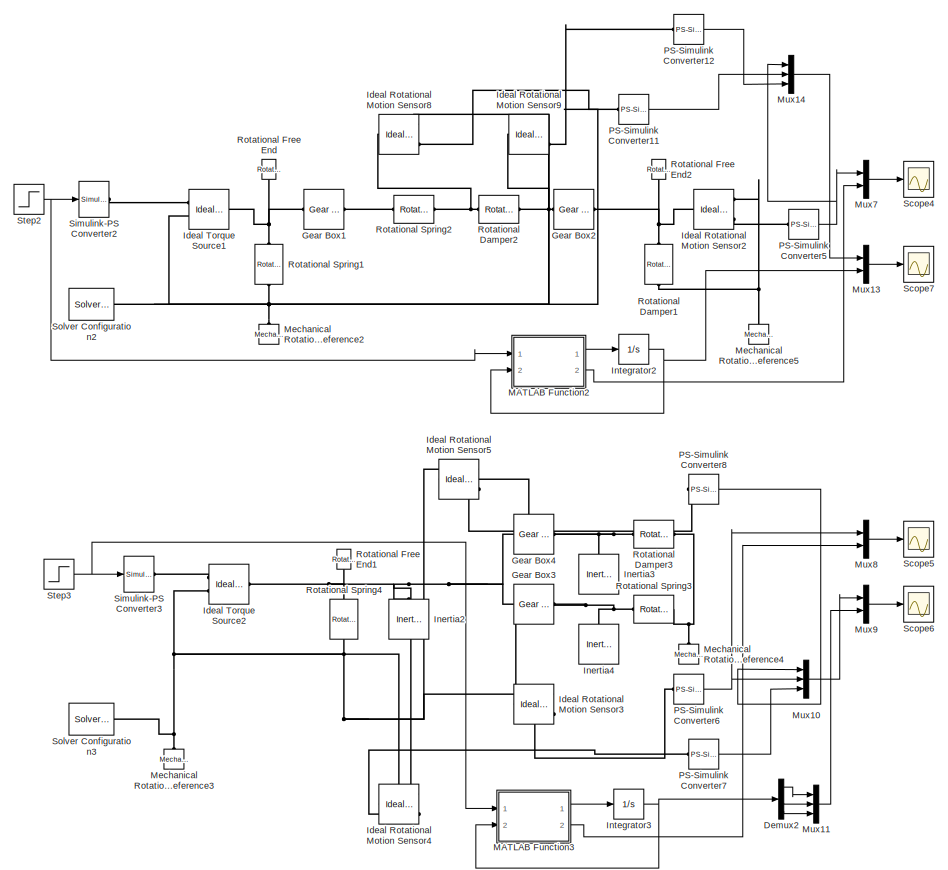
[diagram: root canvas - part 1/2, right side, full height]
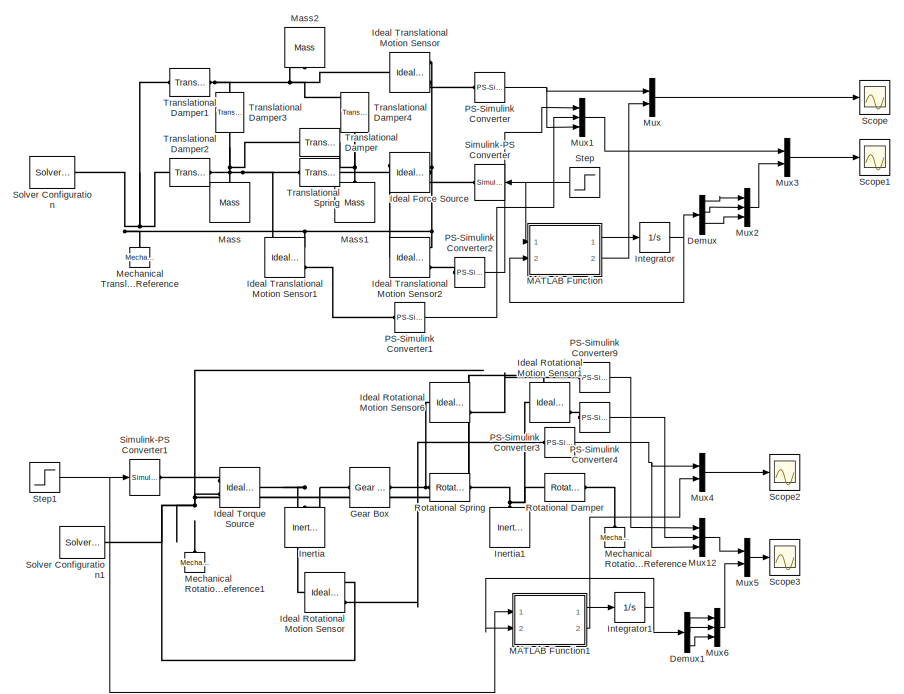
[diagram: root canvas - part 2/2, left side, full height]
MODEL slx_627029dbdec8
KIND model
CONFIG AbsTol = auto
CONFIG FixedStep = auto
CONFIG MaxStep = auto
CONFIG MinStep = auto
CONFIG RelTol = 1e-3
CONFIG SampleTimeConstraint = Unconstrained
CONFIG Solver = ode45
CONFIG SolverMode = Auto
CONFIG SolverName = ode45
CONFIG StartTime = 0.0
CONFIG StopTime = 10.0
BLOCK [Demux] Demux
  DisplayOption = bar
  Outputs = 6
  Ports = [1, 6]
BLOCK [Demux] Demux1
  DisplayOption = bar
  Outputs = 5
  Ports = [1, 5]
BLOCK [Demux] Demux2
  DisplayOption = bar
  Ports = [1, 4]
BLOCK [Reference] Gear Box  REF=fl_lib/Mechanical/Mechanisms/Gear Box
  ClassName = gear_box
  ComponentPath = foundation.mechanical.mechanisms.gear_box
  ComponentVariantNames = gear_box
  ComponentVariants = foundation.mechanical.mechanisms.gear_box
  LogSimulationData = off
  Ports = [0, 0, 0, 0, 0, 1, 1]
  SchemaVersion = 1
  SourceBlock = fl_lib/Mechanical/Mechanisms/Gear Box
  SourceFile = foundation.mechanical.mechanisms.gear_box
  SourceType = Gear Box
  ratio = 100/30
  ratio_unit = 1
  t_in = 0
  t_in_priority = High
  t_in_specify = off
  t_in_unit = N*m
  t_out = 0
  t_out_priority = High
  t_out_specify = off
  t_out_unit = N*m
BLOCK [Reference] Gear Box1  REF=fl_lib/Mechanical/Mechanisms/Gear Box
  ClassName = gear_box
  ComponentPath = foundation.mechanical.mechanisms.gear_box
  ComponentVariantNames = gear_box
  ComponentVariants = foundation.mechanical.mechanisms.gear_box
  LogSimulationData = off
  Ports = [0, 0, 0, 0, 0, 1, 1]
  SchemaVersion = 1
  SourceBlock = fl_lib/Mechanical/Mechanisms/Gear Box
  SourceFile = foundation.mechanical.mechanisms.gear_box
  SourceType = Gear Box
  ratio = 300/30
  ratio_unit = 1
  t_in = 0
  t_in_priority = High
  t_in_specify = off
  t_in_unit = N*m
  t_out = 0
  t_out_priority = High
  t_out_specify = off
  t_out_unit = N*m
BLOCK [Reference] Gear Box2  REF=fl_lib/Mechanical/Mechanisms/Gear Box
  ClassName = gear_box
  ComponentPath = foundation.mechanical.mechanisms.gear_box
  ComponentVariantNames = gear_box
  ComponentVariants = foundation.mechanical.mechanisms.gear_box
  LogSimulationData = off
  Ports = [0, 0, 0, 0, 0, 1, 1]
  SchemaVersion = 1
  SourceBlock = fl_lib/Mechanical/Mechanisms/Gear Box
  SourceFile = foundation.mechanical.mechanisms.gear_box
  SourceType = Gear Box
  ratio = 100/10
  ratio_unit = 1
  t_in = 0
  t_in_priority = High
  t_in_specify = off
  t_in_unit = N*m
  t_out = 0
  t_out_priority = High
  t_out_specify = off
  t_out_unit = N*m
BLOCK [Reference] Gear Box3  REF=fl_lib/Mechanical/Mechanisms/Gear Box
  ClassName = gear_box
  ComponentPath = foundation.mechanical.mechanisms.gear_box
  ComponentVariantNames = gear_box
  ComponentVariants = foundation.mechanical.mechanisms.gear_box
  LogSimulationData = off
  Ports = [0, 0, 0, 0, 0, 1, 1]
  SchemaVersion = 1
  SourceBlock = fl_lib/Mechanical/Mechanisms/Gear Box
  SourceFile = foundation.mechanical.mechanisms.gear_box
  SourceType = Gear Box
  ratio = 10
  ratio_unit = 1
  t_in = 0
  t_in_priority = High
  t_in_specify = off
  t_in_unit = N*m
  t_out = 0
  t_out_priority = High
  t_out_specify = off
  t_out_unit = N*m
BLOCK [Reference] Gear Box4  REF=fl_lib/Mechanical/Mechanisms/Gear Box
  ClassName = gear_box
  ComponentPath = foundation.mechanical.mechanisms.gear_box
  ComponentVariantNames = gear_box
  ComponentVariants = foundation.mechanical.mechanisms.gear_box
  LogSimulationData = off
  Ports = [0, 0, 0, 0, 0, 1, 1]
  SchemaVersion = 1
  SourceBlock = fl_lib/Mechanical/Mechanisms/Gear Box
  SourceFile = foundation.mechanical.mechanisms.gear_box
  SourceType = Gear Box
  ratio = 5
  ratio_unit = 1
  t_in = 0
  t_in_priority = High
  t_in_specify = off
  t_in_unit = N*m
  t_out = 0
  t_out_priority = High
  t_out_specify = off
  t_out_unit = N*m
BLOCK [Reference] Ideal Force Source  REF=fl_lib/Mechanical/Mechanical Sources/Ideal Force Source
  ClassName = force
  ComponentPath = foundation.mechanical.sources.force
  ComponentVariantNames = force
  ComponentVariants = foundation.mechanical.sources.force
  LogSimulationData = off
  Ports = [0, 0, 0, 0, 0, 1, 2]
  SchemaVersion = 1
  SourceBlock = fl_lib/Mechanical/Mechanical Sources/Ideal Force Source
  SourceFile = foundation.mechanical.sources.force
  SourceType = Ideal Force Source
BLOCK [Reference] Ideal Rotational Motion Sensor  REF=fl_lib/Mechanical/Mechanical Sensors/Ideal Rotational
Motion Sensor
  ClassName = angular_velocity
  ComponentPath = foundation.mechanical.sensors.angular_velocity
  ComponentVariantNames = angular_velocity
  ComponentVariants = foundation.mechanical.sensors.angular_velocity
  LogSimulationData = off
  Ports = [0, 0, 0, 0, 0, 1, 3]
  SchemaVersion = 1
  SourceBlock = fl_lib/Mechanical/Mechanical Sensors/Ideal Rotational\nMotion Sensor
  SourceFile = foundation.mechanical.sensors.angular_velocity
  SourceType = Ideal Rotational\nMotion Sensor
  offset = 0
  offset_unit = rad
BLOCK [Reference] Ideal Rotational Motion Sensor1  REF=fl_lib/Mechanical/Mechanical Sensors/Ideal Rotational
Motion Sensor
  ClassName = angular_velocity
  ComponentPath = foundation.mechanical.sensors.angular_velocity
  ComponentVariantNames = angular_velocity
  ComponentVariants = foundation.mechanical.sensors.angular_velocity
  LogSimulationData = off
  Ports = [0, 0, 0, 0, 0, 1, 3]
  SchemaVersion = 1
  SourceBlock = fl_lib/Mechanical/Mechanical Sensors/Ideal Rotational\nMotion Sensor
  SourceFile = foundation.mechanical.sensors.angular_velocity
  SourceType = Ideal Rotational\nMotion Sensor
  offset = 0
  offset_unit = rad
BLOCK [Reference] Ideal Rotational Motion Sensor2  REF=fl_lib/Mechanical/Mechanical Sensors/Ideal Rotational
Motion Sensor
  ClassName = angular_velocity
  ComponentPath = foundation.mechanical.sensors.angular_velocity
  ComponentVariantNames = angular_velocity
  ComponentVariants = foundation.mechanical.sensors.angular_velocity
  LogSimulationData = off
  Ports = [0, 0, 0, 0, 0, 1, 3]
  SchemaVersion = 1
  SourceBlock = fl_lib/Mechanical/Mechanical Sensors/Ideal Rotational\nMotion Sensor
  SourceFile = foundation.mechanical.sensors.angular_velocity
  SourceType = Ideal Rotational\nMotion Sensor
  offset = 0
  offset_unit = rad
BLOCK [Reference] Ideal Rotational Motion Sensor3  REF=fl_lib/Mechanical/Mechanical Sensors/Ideal Rotational
Motion Sensor
  ClassName = angular_velocity
  ComponentPath = foundation.mechanical.sensors.angular_velocity
  ComponentVariantNames = angular_velocity
  ComponentVariants = foundation.mechanical.sensors.angular_velocity
  LogSimulationData = off
  Ports = [0, 0, 0, 0, 0, 1, 3]
  SchemaVersion = 1
  SourceBlock = fl_lib/Mechanical/Mechanical Sensors/Ideal Rotational\nMotion Sensor
  SourceFile = foundation.mechanical.sensors.angular_velocity
  SourceType = Ideal Rotational\nMotion Sensor
  offset = 0
  offset_unit = rad
BLOCK [Reference] Ideal Rotational Motion Sensor4  REF=fl_lib/Mechanical/Mechanical Sensors/Ideal Rotational
Motion Sensor
  ClassName = angular_velocity
  ComponentPath = foundation.mechanical.sensors.angular_velocity
  ComponentVariantNames = angular_velocity
  ComponentVariants = foundation.mechanical.sensors.angular_velocity
  LogSimulationData = off
  Ports = [0, 0, 0, 0, 0, 1, 3]
  SchemaVersion = 1
  SourceBlock = fl_lib/Mechanical/Mechanical Sensors/Ideal Rotational\nMotion Sensor
  SourceFile = foundation.mechanical.sensors.angular_velocity
  SourceType = Ideal Rotational\nMotion Sensor
  offset = 0
  offset_unit = rad
BLOCK [Reference] Ideal Rotational Motion Sensor5  REF=fl_lib/Mechanical/Mechanical Sensors/Ideal Rotational
Motion Sensor
  ClassName = angular_velocity
  ComponentPath = foundation.mechanical.sensors.angular_velocity
  ComponentVariantNames = angular_velocity
  ComponentVariants = foundation.mechanical.sensors.angular_velocity
  LogSimulationData = off
  Ports = [0, 0, 0, 0, 0, 1, 3]
  SchemaVersion = 1
  SourceBlock = fl_lib/Mechanical/Mechanical Sensors/Ideal Rotational\nMotion Sensor
  SourceFile = foundation.mechanical.sensors.angular_velocity
  SourceType = Ideal Rotational\nMotion Sensor
  offset = 0
  offset_unit = rad
BLOCK [Reference] Ideal Rotational Motion Sensor6  REF=fl_lib/Mechanical/Mechanical Sensors/Ideal Rotational
Motion Sensor
  ClassName = angular_velocity
  ComponentPath = foundation.mechanical.sensors.angular_velocity
  ComponentVariantNames = angular_velocity
  ComponentVariants = foundation.mechanical.sensors.angular_velocity
  LogSimulationData = off
  Ports = [0, 0, 0, 0, 0, 1, 3]
  SchemaVersion = 1
  SourceBlock = fl_lib/Mechanical/Mechanical Sensors/Ideal Rotational\nMotion Sensor
  SourceFile = foundation.mechanical.sensors.angular_velocity
  SourceType = Ideal Rotational\nMotion Sensor
  offset = 0
  offset_unit = rad
BLOCK [Reference] Ideal Rotational Motion Sensor8  REF=fl_lib/Mechanical/Mechanical Sensors/Ideal Rotational
Motion Sensor
  ClassName = angular_velocity
  ComponentPath = foundation.mechanical.sensors.angular_velocity
  ComponentVariantNames = angular_velocity
  ComponentVariants = foundation.mechanical.sensors.angular_velocity
  LogSimulationData = off
  Ports = [0, 0, 0, 0, 0, 1, 3]
  SchemaVersion = 1
  SourceBlock = fl_lib/Mechanical/Mechanical Sensors/Ideal Rotational\nMotion Sensor
  SourceFile = foundation.mechanical.sensors.angular_velocity
  SourceType = Ideal Rotational\nMotion Sensor
  offset = 0
  offset_unit = rad
BLOCK [Reference] Ideal Rotational Motion Sensor9  REF=fl_lib/Mechanical/Mechanical Sensors/Ideal Rotational
Motion Sensor
  ClassName = angular_velocity
  ComponentPath = foundation.mechanical.sensors.angular_velocity
  ComponentVariantNames = angular_velocity
  ComponentVariants = foundation.mechanical.sensors.angular_velocity
  LogSimulationData = off
  Ports = [0, 0, 0, 0, 0, 1, 3]
  SchemaVersion = 1
  SourceBlock = fl_lib/Mechanical/Mechanical Sensors/Ideal Rotational\nMotion Sensor
  SourceFile = foundation.mechanical.sensors.angular_velocity
  SourceType = Ideal Rotational\nMotion Sensor
  offset = 0
  offset_unit = rad
BLOCK [Reference] Ideal Torque Source  REF=fl_lib/Mechanical/Mechanical Sources/Ideal Torque Source
  ClassName = torque
  ComponentPath = foundation.mechanical.sources.torque
  ComponentVariantNames = torque
  ComponentVariants = foundation.mechanical.sources.torque
  LogSimulationData = off
  Ports = [0, 0, 0, 0, 0, 1, 2]
  SchemaVersion = 1
  SourceBlock = fl_lib/Mechanical/Mechanical Sources/Ideal Torque Source
  SourceFile = foundation.mechanical.sources.torque
  SourceType = Ideal Torque Source
BLOCK [Reference] Ideal Torque Source1  REF=fl_lib/Mechanical/Mechanical Sources/Ideal Torque Source
  ClassName = torque
  ComponentPath = foundation.mechanical.sources.torque
  ComponentVariantNames = torque
  ComponentVariants = foundation.mechanical.sources.torque
  LogSimulationData = off
  Ports = [0, 0, 0, 0, 0, 1, 2]
  SchemaVersion = 1
  SourceBlock = fl_lib/Mechanical/Mechanical Sources/Ideal Torque Source
  SourceFile = foundation.mechanical.sources.torque
  SourceType = Ideal Torque Source
BLOCK [Reference] Ideal Torque Source2  REF=fl_lib/Mechanical/Mechanical Sources/Ideal Torque Source
  ClassName = torque
  ComponentPath = foundation.mechanical.sources.torque
  ComponentVariantNames = torque
  ComponentVariants = foundation.mechanical.sources.torque
  LogSimulationData = off
  Ports = [0, 0, 0, 0, 0, 1, 2]
  SchemaVersion = 1
  SourceBlock = fl_lib/Mechanical/Mechanical Sources/Ideal Torque Source
  SourceFile = foundation.mechanical.sources.torque
  SourceType = Ideal Torque Source
BLOCK [Reference] Ideal Translational Motion Sensor  REF=fl_lib/Mechanical/Mechanical Sensors/Ideal Translational
Motion Sensor
  ClassName = velocity
  ComponentPath = foundation.mechanical.sensors.velocity
  ComponentVariantNames = velocity
  ComponentVariants = foundation.mechanical.sensors.velocity
  LogSimulationData = off
  Ports = [0, 0, 0, 0, 0, 1, 3]
  SchemaVersion = 1
  SourceBlock = fl_lib/Mechanical/Mechanical Sensors/Ideal Translational\nMotion Sensor
  SourceFile = foundation.mechanical.sensors.velocity
  SourceType = Ideal Translational\nMotion Sensor
  offset = 0
  offset_unit = m
BLOCK [Reference] Ideal Translational Motion Sensor1  REF=fl_lib/Mechanical/Mechanical Sensors/Ideal Translational
Motion Sensor
  ClassName = velocity
  ComponentPath = foundation.mechanical.sensors.velocity
  ComponentVariantNames = velocity
  ComponentVariants = foundation.mechanical.sensors.velocity
  LogSimulationData = off
  Ports = [0, 0, 0, 0, 0, 1, 3]
  SchemaVersion = 1
  SourceBlock = fl_lib/Mechanical/Mechanical Sensors/Ideal Translational\nMotion Sensor
  SourceFile = foundation.mechanical.sensors.velocity
  SourceType = Ideal Translational\nMotion Sensor
  offset = 0
  offset_unit = m
BLOCK [Reference] Ideal Translational Motion Sensor2  REF=fl_lib/Mechanical/Mechanical Sensors/Ideal Translational
Motion Sensor
  ClassName = velocity
  ComponentPath = foundation.mechanical.sensors.velocity
  ComponentVariantNames = velocity
  ComponentVariants = foundation.mechanical.sensors.velocity
  LogSimulationData = off
  Ports = [0, 0, 0, 0, 0, 1, 3]
  SchemaVersion = 1
  SourceBlock = fl_lib/Mechanical/Mechanical Sensors/Ideal Translational\nMotion Sensor
  SourceFile = foundation.mechanical.sensors.velocity
  SourceType = Ideal Translational\nMotion Sensor
  offset = 0
  offset_unit = m
BLOCK [Reference] Inertia  REF=fl_lib/Mechanical/Rotational Elements/Inertia
  ClassName = inertia
  ComponentPath = foundation.mechanical.rotational.inertia
  ComponentVariantNames = inertia
  ComponentVariants = foundation.mechanical.rotational.inertia
  LogSimulationData = off
  Ports = [0, 0, 0, 0, 0, 1]
  SchemaVersion = 1
  SourceBlock = fl_lib/Mechanical/Rotational Elements/Inertia
  SourceFile = foundation.mechanical.rotational.inertia
  SourceType = Inertia
  inertia = 50
  inertia_unit = kg*m^2
  t = 0
  t_priority = High
  t_specify = off
  t_unit = N*m
  w = 0
  w_priority = High
  w_specify = off
  w_unit = rad/s
BLOCK [Reference] Inertia1  REF=fl_lib/Mechanical/Rotational Elements/Inertia
  ClassName = inertia
  ComponentPath = foundation.mechanical.rotational.inertia
  ComponentVariantNames = inertia
  ComponentVariants = foundation.mechanical.rotational.inertia
  LogSimulationData = off
  Ports = [0, 0, 0, 0, 0, 1]
  SchemaVersion = 1
  SourceBlock = fl_lib/Mechanical/Rotational Elements/Inertia
  SourceFile = foundation.mechanical.rotational.inertia
  SourceType = Inertia
  inertia = 100
  inertia_unit = kg*m^2
  t = 0
  t_priority = High
  t_specify = off
  t_unit = N*m
  w = 0
  w_priority = High
  w_specify = off
  w_unit = rad/s
BLOCK [Reference] Inertia2  REF=fl_lib/Mechanical/Rotational Elements/Inertia
  ClassName = inertia
  ComponentPath = foundation.mechanical.rotational.inertia
  ComponentVariantNames = inertia
  ComponentVariants = foundation.mechanical.rotational.inertia
  LogSimulationData = off
  Ports = [0, 0, 0, 0, 0, 1]
  SchemaVersion = 1
  SourceBlock = fl_lib/Mechanical/Rotational Elements/Inertia
  SourceFile = foundation.mechanical.rotational.inertia
  SourceType = Inertia
  inertia = 3
  inertia_unit = kg*m^2
  t = 0
  t_priority = High
  t_specify = off
  t_unit = N*m
  w = 0
  w_priority = High
  w_specify = off
  w_unit = rad/s
BLOCK [Reference] Inertia3  REF=fl_lib/Mechanical/Rotational Elements/Inertia
  ClassName = inertia
  ComponentPath = foundation.mechanical.rotational.inertia
  ComponentVariantNames = inertia
  ComponentVariants = foundation.mechanical.rotational.inertia
  LogSimulationData = off
  Ports = [0, 0, 0, 0, 0, 1]
  SchemaVersion = 1
  SourceBlock = fl_lib/Mechanical/Rotational Elements/Inertia
  SourceFile = foundation.mechanical.rotational.inertia
  SourceType = Inertia
  inertia = 200
  inertia_unit = kg*m^2
  t = 0
  t_priority = High
  t_specify = off
  t_unit = N*m
  w = 0
  w_priority = High
  w_specify = off
  w_unit = rad/s
BLOCK [Reference] Inertia4  REF=fl_lib/Mechanical/Rotational Elements/Inertia
  ClassName = inertia
  ComponentPath = foundation.mechanical.rotational.inertia
  ComponentVariantNames = inertia
  ComponentVariants = foundation.mechanical.rotational.inertia
  LogSimulationData = off
  Ports = [0, 0, 0, 0, 0, 1]
  SchemaVersion = 1
  SourceBlock = fl_lib/Mechanical/Rotational Elements/Inertia
  SourceFile = foundation.mechanical.rotational.inertia
  SourceType = Inertia
  inertia = 200
  inertia_unit = kg*m^2
  t = 0
  t_priority = High
  t_specify = off
  t_unit = N*m
  w = 0
  w_priority = High
  w_specify = off
  w_unit = rad/s
BLOCK [Integrator] Integrator
  InitialCondition = [0 0 0 0 0 0]
  Ports = [1, 1]
BLOCK [Integrator] Integrator1
  InitialCondition = [0 0 0 0 0]
  Ports = [1, 1]
BLOCK [Integrator] Integrator2
  InitialCondition = [0 0 0]
  Ports = [1, 1]
BLOCK [Integrator] Integrator3
  InitialCondition = [0 0 0 0]
  Ports = [1, 1]
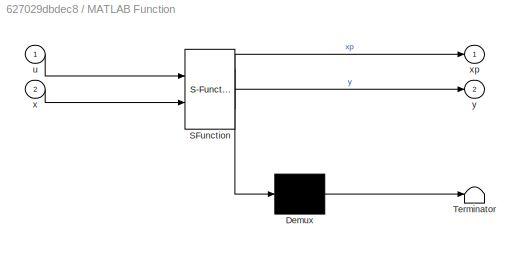
BLOCK [SubSystem] MATLAB Function
  ErrorFcn = Stateflow.Translate.translate
  PermitHierarchicalResolution = ExplicitOnly
  Ports = [2, 2]
  RequestExecContextInheritance = off
  SFBlockType = MATLAB Function
  TreatAsAtomicUnit = on
BLOCK [Demux] MATLAB Function/ Demux 
  Outputs = 1
  Ports = [1, 1]
BLOCK [S-Function] MATLAB Function/ SFunction 
  EnableBusSupport = on
  FunctionName = sf_sfun
  PortCounts = [2 3]
  Ports = [2, 3]
  Tag = Stateflow S-Function simulacionesP10 2
BLOCK [Terminator] MATLAB Function/ Terminator 
BLOCK [Inport] MATLAB Function/u
  IconDisplay = Port number
BLOCK [Inport] MATLAB Function/x
  IconDisplay = Port number
  Port = 2
BLOCK [Outport] MATLAB Function/xp
  IconDisplay = Port number
BLOCK [Outport] MATLAB Function/y
  IconDisplay = Port number
  Port = 2
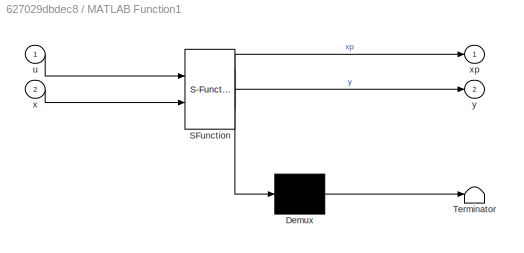
BLOCK [SubSystem] MATLAB Function1
  ErrorFcn = Stateflow.Translate.translate
  PermitHierarchicalResolution = ExplicitOnly
  Ports = [2, 2]
  RequestExecContextInheritance = off
  SFBlockType = MATLAB Function
  TreatAsAtomicUnit = on
BLOCK [Demux] MATLAB Function1/ Demux 
  Outputs = 1
  Ports = [1, 1]
BLOCK [S-Function] MATLAB Function1/ SFunction 
  EnableBusSupport = on
  FunctionName = sf_sfun
  PortCounts = [2 3]
  Ports = [2, 3]
  Tag = Stateflow S-Function simulacionesP10 1
BLOCK [Terminator] MATLAB Function1/ Terminator 
BLOCK [Inport] MATLAB Function1/u
  IconDisplay = Port number
BLOCK [Inport] MATLAB Function1/x
  IconDisplay = Port number
  Port = 2
BLOCK [Outport] MATLAB Function1/xp
  IconDisplay = Port number
BLOCK [Outport] MATLAB Function1/y
  IconDisplay = Port number
  Port = 2
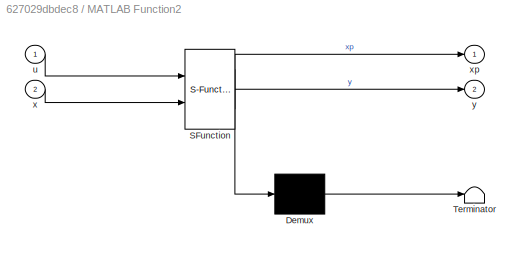
BLOCK [SubSystem] MATLAB Function2
  ErrorFcn = Stateflow.Translate.translate
  PermitHierarchicalResolution = ExplicitOnly
  Ports = [2, 2]
  RequestExecContextInheritance = off
  SFBlockType = MATLAB Function
  TreatAsAtomicUnit = on
BLOCK [Demux] MATLAB Function2/ Demux 
  Outputs = 1
  Ports = [1, 1]
BLOCK [S-Function] MATLAB Function2/ SFunction 
  EnableBusSupport = on
  FunctionName = sf_sfun
  PortCounts = [2 3]
  Ports = [2, 3]
  Tag = Stateflow S-Function simulacionesP10 3
BLOCK [Terminator] MATLAB Function2/ Terminator 
BLOCK [Inport] MATLAB Function2/u
  IconDisplay = Port number
BLOCK [Inport] MATLAB Function2/x
  IconDisplay = Port number
  Port = 2
BLOCK [Outport] MATLAB Function2/xp
  IconDisplay = Port number
BLOCK [Outport] MATLAB Function2/y
  IconDisplay = Port number
  Port = 2
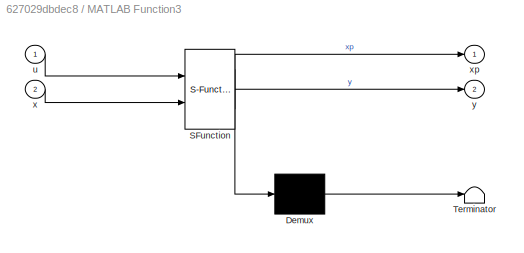
BLOCK [SubSystem] MATLAB Function3
  ErrorFcn = Stateflow.Translate.translate
  PermitHierarchicalResolution = ExplicitOnly
  Ports = [2, 2]
  RequestExecContextInheritance = off
  SFBlockType = MATLAB Function
  TreatAsAtomicUnit = on
BLOCK [Demux] MATLAB Function3/ Demux 
  Outputs = 1
  Ports = [1, 1]
BLOCK [S-Function] MATLAB Function3/ SFunction 
  EnableBusSupport = on
  FunctionName = sf_sfun
  PortCounts = [2 3]
  Ports = [2, 3]
  Tag = Stateflow S-Function simulacionesP10 4
BLOCK [Terminator] MATLAB Function3/ Terminator 
BLOCK [Inport] MATLAB Function3/u
  IconDisplay = Port number
BLOCK [Inport] MATLAB Function3/x
  IconDisplay = Port number
  Port = 2
BLOCK [Outport] MATLAB Function3/xp
  IconDisplay = Port number
BLOCK [Outport] MATLAB Function3/y
  IconDisplay = Port number
  Port = 2
BLOCK [Reference] Mass  REF=fl_lib/Mechanical/Translational
Elements/Mass
  ClassName = mass
  ComponentPath = foundation.mechanical.translational.mass
  ComponentVariantNames = mass
  ComponentVariants = foundation.mechanical.translational.mass
  LogSimulationData = off
  Ports = [0, 0, 0, 0, 0, 1]
  SchemaVersion = 1
  SourceBlock = fl_lib/Mechanical/Translational\nElements/Mass
  SourceFile = foundation.mechanical.translational.mass
  SourceType = Mass
  f = 0
  f_priority = High
  f_specify = off
  f_unit = N
  mass = 2
  mass_unit = kg
  v = 0
  v_priority = High
  v_specify = off
  v_unit = m/s
BLOCK [Reference] Mass1  REF=fl_lib/Mechanical/Translational
Elements/Mass
  ClassName = mass
  ComponentPath = foundation.mechanical.translational.mass
  ComponentVariantNames = mass
  ComponentVariants = foundation.mechanical.translational.mass
  LogSimulationData = off
  Ports = [0, 0, 0, 0, 0, 1]
  SchemaVersion = 1
  SourceBlock = fl_lib/Mechanical/Translational\nElements/Mass
  SourceFile = foundation.mechanical.translational.mass
  SourceType = Mass
  f = 0
  f_priority = High
  f_specify = off
  f_unit = N
  mass = 1
  mass_unit = kg
  v = 0
  v_priority = High
  v_specify = off
  v_unit = m/s
BLOCK [Reference] Mass2  REF=fl_lib/Mechanical/Translational
Elements/Mass
  ClassName = mass
  ComponentPath = foundation.mechanical.translational.mass
  ComponentVariantNames = mass
  ComponentVariants = foundation.mechanical.translational.mass
  LogSimulationData = off
  Ports = [0, 0, 0, 0, 0, 1]
  SchemaVersion = 1
  SourceBlock = fl_lib/Mechanical/Translational\nElements/Mass
  SourceFile = foundation.mechanical.translational.mass
  SourceType = Mass
  f = 0
  f_priority = High
  f_specify = off
  f_unit = N
  mass = 1
  mass_unit = kg
  v = 0
  v_priority = High
  v_specify = off
  v_unit = m/s
BLOCK [Reference] Mechanical Rotational Reference  REF=fl_lib/Mechanical/Rotational Elements/Mechanical
Rotational Reference
  ClassName = reference
  ComponentPath = foundation.mechanical.rotational.reference
  ComponentVariantNames = reference
  ComponentVariants = foundation.mechanical.rotational.reference
  LogSimulationData = off
  Ports = [0, 0, 0, 0, 0, 1]
  SchemaVersion = 1
  SourceBlock = fl_lib/Mechanical/Rotational Elements/Mechanical\nRotational Reference
  SourceFile = foundation.mechanical.rotational.reference
  SourceType = Mechanical\nRotational Reference
BLOCK [Reference] Mechanical Rotational Reference1  REF=fl_lib/Mechanical/Rotational Elements/Mechanical
Rotational Reference
  ClassName = reference
  ComponentPath = foundation.mechanical.rotational.reference
  ComponentVariantNames = reference
  ComponentVariants = foundation.mechanical.rotational.reference
  LogSimulationData = off
  Ports = [0, 0, 0, 0, 0, 1]
  SchemaVersion = 1
  SourceBlock = fl_lib/Mechanical/Rotational Elements/Mechanical\nRotational Reference
  SourceFile = foundation.mechanical.rotational.reference
  SourceType = Mechanical\nRotational Reference
BLOCK [Reference] Mechanical Rotational Reference2  REF=fl_lib/Mechanical/Rotational Elements/Mechanical
Rotational Reference
  ClassName = reference
  ComponentPath = foundation.mechanical.rotational.reference
  ComponentVariantNames = reference
  ComponentVariants = foundation.mechanical.rotational.reference
  LogSimulationData = off
  Ports = [0, 0, 0, 0, 0, 1]
  SchemaVersion = 1
  SourceBlock = fl_lib/Mechanical/Rotational Elements/Mechanical\nRotational Reference
  SourceFile = foundation.mechanical.rotational.reference
  SourceType = Mechanical\nRotational Reference
BLOCK [Reference] Mechanical Rotational Reference3  REF=fl_lib/Mechanical/Rotational Elements/Mechanical
Rotational Reference
  ClassName = reference
  ComponentPath = foundation.mechanical.rotational.reference
  ComponentVariantNames = reference
  ComponentVariants = foundation.mechanical.rotational.reference
  LogSimulationData = off
  Ports = [0, 0, 0, 0, 0, 1]
  SchemaVersion = 1
  SourceBlock = fl_lib/Mechanical/Rotational Elements/Mechanical\nRotational Reference
  SourceFile = foundation.mechanical.rotational.reference
  SourceType = Mechanical\nRotational Reference
BLOCK [Reference] Mechanical Rotational Reference4  REF=fl_lib/Mechanical/Rotational Elements/Mechanical
Rotational Reference
  ClassName = reference
  ComponentPath = foundation.mechanical.rotational.reference
  ComponentVariantNames = reference
  ComponentVariants = foundation.mechanical.rotational.reference
  LogSimulationData = off
  Ports = [0, 0, 0, 0, 0, 1]
  SchemaVersion = 1
  SourceBlock = fl_lib/Mechanical/Rotational Elements/Mechanical\nRotational Reference
  SourceFile = foundation.mechanical.rotational.reference
  SourceType = Mechanical\nRotational Reference
BLOCK [Reference] Mechanical Rotational Reference5  REF=fl_lib/Mechanical/Rotational Elements/Mechanical
Rotational Reference
  ClassName = reference
  ComponentPath = foundation.mechanical.rotational.reference
  ComponentVariantNames = reference
  ComponentVariants = foundation.mechanical.rotational.reference
  LogSimulationData = off
  Ports = [0, 0, 0, 0, 0, 1]
  SchemaVersion = 1
  SourceBlock = fl_lib/Mechanical/Rotational Elements/Mechanical\nRotational Reference
  SourceFile = foundation.mechanical.rotational.reference
  SourceType = Mechanical\nRotational Reference
BLOCK [Reference] Mechanical Translational Reference  REF=fl_lib/Mechanical/Translational
Elements/Mechanical
Translational
Reference
  ClassName = reference
  ComponentPath = foundation.mechanical.translational.reference
  ComponentVariantNames = reference
  ComponentVariants = foundation.mechanical.translational.reference
  LogSimulationData = off
  Ports = [0, 0, 0, 0, 0, 1]
  SchemaVersion = 1
  SourceBlock = fl_lib/Mechanical/Translational\nElements/Mechanical\nTranslational\nReference
  SourceFile = foundation.mechanical.translational.reference
  SourceType = Mechanical\nTranslational\nReference
BLOCK [Mux] Mux
  DisplayOption = bar
  Inputs = 2
  Ports = [2, 1]
BLOCK [Mux] Mux1
  DisplayOption = bar
  Inputs = 3
  Ports = [3, 1]
BLOCK [Mux] Mux10
  DisplayOption = bar
  Inputs = 3
  Ports = [3, 1]
BLOCK [Mux] Mux11
  DisplayOption = bar
  Inputs = 3
  Ports = [3, 1]
BLOCK [Mux] Mux12
  DisplayOption = bar
  Inputs = 3
  Ports = [3, 1]
BLOCK [Mux] Mux13
  DisplayOption = bar
  Inputs = 2
  Ports = [2, 1]
BLOCK [Mux] Mux14
  DisplayOption = bar
  Inputs = 3
  Ports = [3, 1]
BLOCK [Mux] Mux2
  DisplayOption = bar
  Inputs = 3
  Ports = [3, 1]
BLOCK [Mux] Mux3
  DisplayOption = bar
  Inputs = 2
  Ports = [2, 1]
BLOCK [Mux] Mux4
  DisplayOption = bar
  Inputs = 2
  Ports = [2, 1]
BLOCK [Mux] Mux5
  DisplayOption = bar
  Inputs = 2
  Ports = [2, 1]
BLOCK [Mux] Mux6
  DisplayOption = bar
  Inputs = 3
  Ports = [3, 1]
BLOCK [Mux] Mux7
  DisplayOption = bar
  Inputs = 2
  Ports = [2, 1]
BLOCK [Mux] Mux8
  DisplayOption = bar
  Inputs = 2
  Ports = [2, 1]
BLOCK [Mux] Mux9
  DisplayOption = bar
  Inputs = 2
  Ports = [2, 1]
BLOCK [Reference] PS-Simulink Converter  REF=nesl_utility/PS-Simulink
Converter
  AffineConversion = off
  Frequencies = []
  LeftPortType = input
  PhysicalDomain = network_engine_domain
  Ports = [0, 1, 0, 0, 0, 1]
  PseudoPeriodic = off
  RightPortType = output
  SourceBlock = nesl_utility/PS-Simulink\nConverter
  SourceType = PS-Simulink\nConverter
  SubClassName = ps_output
  Unit = 1
BLOCK [Reference] PS-Simulink Converter1  REF=nesl_utility/PS-Simulink
Converter
  AffineConversion = off
  Frequencies = []
  LeftPortType = input
  PhysicalDomain = network_engine_domain
  Ports = [0, 1, 0, 0, 0, 1]
  PseudoPeriodic = off
  RightPortType = output
  SourceBlock = nesl_utility/PS-Simulink\nConverter
  SourceType = PS-Simulink\nConverter
  SubClassName = ps_output
  Unit = 1
BLOCK [Reference] PS-Simulink Converter11  REF=nesl_utility/PS-Simulink
Converter
  AffineConversion = off
  Frequencies = []
  LeftPortType = input
  PhysicalDomain = network_engine_domain
  Ports = [0, 1, 0, 0, 0, 1]
  PseudoPeriodic = off
  RightPortType = output
  SourceBlock = nesl_utility/PS-Simulink\nConverter
  SourceType = PS-Simulink\nConverter
  SubClassName = ps_output
  Unit = 1
BLOCK [Reference] PS-Simulink Converter12  REF=nesl_utility/PS-Simulink
Converter
  AffineConversion = off
  Frequencies = []
  LeftPortType = input
  PhysicalDomain = network_engine_domain
  Ports = [0, 1, 0, 0, 0, 1]
  PseudoPeriodic = off
  RightPortType = output
  SourceBlock = nesl_utility/PS-Simulink\nConverter
  SourceType = PS-Simulink\nConverter
  SubClassName = ps_output
  Unit = 1
BLOCK [Reference] PS-Simulink Converter2  REF=nesl_utility/PS-Simulink
Converter
  AffineConversion = off
  Frequencies = []
  LeftPortType = input
  PhysicalDomain = network_engine_domain
  Ports = [0, 1, 0, 0, 0, 1]
  PseudoPeriodic = off
  RightPortType = output
  SourceBlock = nesl_utility/PS-Simulink\nConverter
  SourceType = PS-Simulink\nConverter
  SubClassName = ps_output
  Unit = 1
BLOCK [Reference] PS-Simulink Converter3  REF=nesl_utility/PS-Simulink
Converter
  AffineConversion = off
  Frequencies = []
  LeftPortType = input
  PhysicalDomain = network_engine_domain
  Ports = [0, 1, 0, 0, 0, 1]
  PseudoPeriodic = off
  RightPortType = output
  SourceBlock = nesl_utility/PS-Simulink\nConverter
  SourceType = PS-Simulink\nConverter
  SubClassName = ps_output
  Unit = 1
BLOCK [Reference] PS-Simulink Converter4  REF=nesl_utility/PS-Simulink
Converter
  AffineConversion = off
  Frequencies = []
  LeftPortType = input
  PhysicalDomain = network_engine_domain
  Ports = [0, 1, 0, 0, 0, 1]
  PseudoPeriodic = off
  RightPortType = output
  SourceBlock = nesl_utility/PS-Simulink\nConverter
  SourceType = PS-Simulink\nConverter
  SubClassName = ps_output
  Unit = 1
BLOCK [Reference] PS-Simulink Converter5  REF=nesl_utility/PS-Simulink
Converter
  AffineConversion = off
  Frequencies = []
  LeftPortType = input
  PhysicalDomain = network_engine_domain
  Ports = [0, 1, 0, 0, 0, 1]
  PseudoPeriodic = off
  RightPortType = output
  SourceBlock = nesl_utility/PS-Simulink\nConverter
  SourceType = PS-Simulink\nConverter
  SubClassName = ps_output
  Unit = 1
BLOCK [Reference] PS-Simulink Converter6  REF=nesl_utility/PS-Simulink
Converter
  AffineConversion = off
  Frequencies = []
  LeftPortType = input
  PhysicalDomain = network_engine_domain
  Ports = [0, 1, 0, 0, 0, 1]
  PseudoPeriodic = off
  RightPortType = output
  SourceBlock = nesl_utility/PS-Simulink\nConverter
  SourceType = PS-Simulink\nConverter
  SubClassName = ps_output
  Unit = 1
BLOCK [Reference] PS-Simulink Converter7  REF=nesl_utility/PS-Simulink
Converter
  AffineConversion = off
  Frequencies = []
  LeftPortType = input
  PhysicalDomain = network_engine_domain
  Ports = [0, 1, 0, 0, 0, 1]
  PseudoPeriodic = off
  RightPortType = output
  SourceBlock = nesl_utility/PS-Simulink\nConverter
  SourceType = PS-Simulink\nConverter
  SubClassName = ps_output
  Unit = 1
BLOCK [Reference] PS-Simulink Converter8  REF=nesl_utility/PS-Simulink
Converter
  AffineConversion = off
  Frequencies = []
  LeftPortType = input
  PhysicalDomain = network_engine_domain
  Ports = [0, 1, 0, 0, 0, 1]
  PseudoPeriodic = off
  RightPortType = output
  SourceBlock = nesl_utility/PS-Simulink\nConverter
  SourceType = PS-Simulink\nConverter
  SubClassName = ps_output
  Unit = 1
BLOCK [Reference] PS-Simulink Converter9  REF=nesl_utility/PS-Simulink
Converter
  AffineConversion = off
  Frequencies = []
  LeftPortType = input
  PhysicalDomain = network_engine_domain
  Ports = [0, 1, 0, 0, 0, 1]
  PseudoPeriodic = off
  RightPortType = output
  SourceBlock = nesl_utility/PS-Simulink\nConverter
  SourceType = PS-Simulink\nConverter
  SubClassName = ps_output
  Unit = 1
BLOCK [Reference] Rotational Damper  REF=fl_lib/Mechanical/Rotational Elements/Rotational Damper
  ClassName = damper
  ComponentPath = foundation.mechanical.rotational.damper
  ComponentVariantNames = damper
  ComponentVariants = foundation.mechanical.rotational.damper
  D = 100
  D_unit = N*m/(rad/s)
  LogSimulationData = off
  Ports = [0, 0, 0, 0, 0, 1, 1]
  SchemaVersion = 1
  SourceBlock = fl_lib/Mechanical/Rotational Elements/Rotational Damper
  SourceFile = foundation.mechanical.rotational.damper
  SourceType = Rotational Damper
  t = 0
  t_priority = High
  t_specify = off
  t_unit = N*m
  w = 0
  w_priority = High
  w_specify = off
  w_unit = rad/s
BLOCK [Reference] Rotational Damper1  REF=fl_lib/Mechanical/Rotational Elements/Rotational Damper
  ClassName = damper
  ComponentPath = foundation.mechanical.rotational.damper
  ComponentVariantNames = damper
  ComponentVariants = foundation.mechanical.rotational.damper
  D = 200
  D_unit = N*m/(rad/s)
  LogSimulationData = off
  Ports = [0, 0, 0, 0, 0, 1, 1]
  SchemaVersion = 1
  SourceBlock = fl_lib/Mechanical/Rotational Elements/Rotational Damper
  SourceFile = foundation.mechanical.rotational.damper
  SourceType = Rotational Damper
  t = 0
  t_priority = High
  t_specify = off
  t_unit = N*m
  w = 0
  w_priority = High
  w_specify = off
  w_unit = rad/s
BLOCK [Reference] Rotational Damper2  REF=fl_lib/Mechanical/Rotational Elements/Rotational Damper
  ClassName = damper
  ComponentPath = foundation.mechanical.rotational.damper
  ComponentVariantNames = damper
  ComponentVariants = foundation.mechanical.rotational.damper
  D = 3
  D_unit = N*m/(rad/s)
  LogSimulationData = off
  Ports = [0, 0, 0, 0, 0, 1, 1]
  SchemaVersion = 1
  SourceBlock = fl_lib/Mechanical/Rotational Elements/Rotational Damper
  SourceFile = foundation.mechanical.rotational.damper
  SourceType = Rotational Damper
  t = 0
  t_priority = High
  t_specify = off
  t_unit = N*m
  w = 0
  w_priority = High
  w_specify = off
  w_unit = rad/s
BLOCK [Reference] Rotational Damper3  REF=fl_lib/Mechanical/Rotational Elements/Rotational Damper
  ClassName = damper
  ComponentPath = foundation.mechanical.rotational.damper
  ComponentVariantNames = damper
  ComponentVariants = foundation.mechanical.rotational.damper
  D = 1000
  D_unit = N*m/(rad/s)
  LogSimulationData = off
  Ports = [0, 0, 0, 0, 0, 1, 1]
  SchemaVersion = 1
  SourceBlock = fl_lib/Mechanical/Rotational Elements/Rotational Damper
  SourceFile = foundation.mechanical.rotational.damper
  SourceType = Rotational Damper
  t = 0
  t_priority = High
  t_specify = off
  t_unit = N*m
  w = 0
  w_priority = High
  w_specify = off
  w_unit = rad/s
BLOCK [Reference] Rotational Free End  REF=fl_lib/Mechanical/Rotational Elements/Rotational Free End
  ClassName = free_end
  ComponentPath = foundation.mechanical.rotational.free_end
  ComponentVariantNames = free_end
  ComponentVariants = foundation.mechanical.rotational.free_end
  LogSimulationData = off
  Ports = [0, 0, 0, 0, 0, 1]
  SchemaVersion = 1
  SourceBlock = fl_lib/Mechanical/Rotational Elements/Rotational Free End
  SourceFile = foundation.mechanical.rotational.free_end
  SourceType = Rotational Free End
  w = 0
  w_priority = High
  w_specify = on
  w_unit = rad/s
BLOCK [Reference] Rotational Free End1  REF=fl_lib/Mechanical/Rotational Elements/Rotational Free End
  ClassName = free_end
  ComponentPath = foundation.mechanical.rotational.free_end
  ComponentVariantNames = free_end
  ComponentVariants = foundation.mechanical.rotational.free_end
  LogSimulationData = off
  Ports = [0, 0, 0, 0, 0, 1]
  SchemaVersion = 1
  SourceBlock = fl_lib/Mechanical/Rotational Elements/Rotational Free End
  SourceFile = foundation.mechanical.rotational.free_end
  SourceType = Rotational Free End
  w = 0
  w_priority = High
  w_specify = off
  w_unit = rad/s
BLOCK [Reference] Rotational Free End2  REF=fl_lib/Mechanical/Rotational Elements/Rotational Free End
  ClassName = free_end
  ComponentPath = foundation.mechanical.rotational.free_end
  ComponentVariantNames = free_end
  ComponentVariants = foundation.mechanical.rotational.free_end
  LogSimulationData = off
  Ports = [0, 0, 0, 0, 0, 1]
  SchemaVersion = 1
  SourceBlock = fl_lib/Mechanical/Rotational Elements/Rotational Free End
  SourceFile = foundation.mechanical.rotational.free_end
  SourceType = Rotational Free End
  w = 0
  w_priority = High
  w_specify = on
  w_unit = rad/s
BLOCK [Reference] Rotational Spring  REF=fl_lib/Mechanical/Rotational Elements/Rotational Spring
  ClassName = spring
  ComponentPath = foundation.mechanical.rotational.spring
  ComponentVariantNames = spring
  ComponentVariants = foundation.mechanical.rotational.spring
  LogSimulationData = off
  Ports = [0, 0, 0, 0, 0, 1, 1]
  SchemaVersion = 1
  SourceBlock = fl_lib/Mechanical/Rotational Elements/Rotational Spring
  SourceFile = foundation.mechanical.rotational.spring
  SourceType = Rotational Spring
  phi = 0
  phi_priority = High
  phi_specify = off
  phi_unit = rad
  spr_rate = 100
  spr_rate_unit = N*m/rad
  t = 0
  t_priority = High
  t_specify = off
  t_unit = N*m
  w = 0
  w_priority = High
  w_specify = off
  w_unit = rad/s
BLOCK [Reference] Rotational Spring1  REF=fl_lib/Mechanical/Rotational Elements/Rotational Spring
  ClassName = spring
  ComponentPath = foundation.mechanical.rotational.spring
  ComponentVariantNames = spring
  ComponentVariants = foundation.mechanical.rotational.spring
  LogSimulationData = off
  Ports = [0, 0, 0, 0, 0, 1, 1]
  SchemaVersion = 1
  SourceBlock = fl_lib/Mechanical/Rotational Elements/Rotational Spring
  SourceFile = foundation.mechanical.rotational.spring
  SourceType = Rotational Spring
  phi = 0
  phi_priority = High
  phi_specify = off
  phi_unit = rad
  spr_rate = 1/10
  spr_rate_unit = N*m/rad
  t = 0
  t_priority = High
  t_specify = off
  t_unit = N*m
  w = 0
  w_priority = High
  w_specify = off
  w_unit = rad/s
BLOCK [Reference] Rotational Spring2  REF=fl_lib/Mechanical/Rotational Elements/Rotational Spring
  ClassName = spring
  ComponentPath = foundation.mechanical.rotational.spring
  ComponentVariantNames = spring
  ComponentVariants = foundation.mechanical.rotational.spring
  LogSimulationData = off
  Ports = [0, 0, 0, 0, 0, 1, 1]
  SchemaVersion = 1
  SourceBlock = fl_lib/Mechanical/Rotational Elements/Rotational Spring
  SourceFile = foundation.mechanical.rotational.spring
  SourceType = Rotational Spring
  phi = 0
  phi_priority = High
  phi_specify = off
  phi_unit = rad
  spr_rate = 2
  spr_rate_unit = N*m/rad
  t = 0
  t_priority = High
  t_specify = off
  t_unit = N*m
  w = 0
  w_priority = High
  w_specify = off
  w_unit = rad/s
BLOCK [Reference] Rotational Spring3  REF=fl_lib/Mechanical/Rotational Elements/Rotational Spring
  ClassName = spring
  ComponentPath = foundation.mechanical.rotational.spring
  ComponentVariantNames = spring
  ComponentVariants = foundation.mechanical.rotational.spring
  LogSimulationData = off
  Ports = [0, 0, 0, 0, 0, 1, 1]
  SchemaVersion = 1
  SourceBlock = fl_lib/Mechanical/Rotational Elements/Rotational Spring
  SourceFile = foundation.mechanical.rotational.spring
  SourceType = Rotational Spring
  phi = 0
  phi_priority = High
  phi_specify = off
  phi_unit = rad
  spr_rate = 250
  spr_rate_unit = N*m/rad
  t = 0
  t_priority = High
  t_specify = off
  t_unit = N*m
  w = 0
  w_priority = High
  w_specify = off
  w_unit = rad/s
BLOCK [Reference] Rotational Spring4  REF=fl_lib/Mechanical/Rotational Elements/Rotational Spring
  ClassName = spring
  ComponentPath = foundation.mechanical.rotational.spring
  ComponentVariantNames = spring
  ComponentVariants = foundation.mechanical.rotational.spring
  LogSimulationData = off
  Ports = [0, 0, 0, 0, 0, 1, 1]
  SchemaVersion = 1
  SourceBlock = fl_lib/Mechanical/Rotational Elements/Rotational Spring
  SourceFile = foundation.mechanical.rotational.spring
  SourceType = Rotational Spring
  phi = 0
  phi_priority = High
  phi_specify = off
  phi_unit = rad
  spr_rate = 3
  spr_rate_unit = N*m/rad
  t = 0
  t_priority = High
  t_specify = off
  t_unit = N*m
  w = 0
  w_priority = High
  w_specify = off
  w_unit = rad/s
BLOCK [Scope] Scope
  Floating = off
  LimitDataPoints = off
  NumInputPorts = 1
  Ports = [1]
  YMax = 3.07359
  YMin = -0.34151
BLOCK [Scope] Scope1
  Floating = off
  LimitDataPoints = off
  NumInputPorts = 1
  Ports = [1]
  SaveName = ScopeData1
  YMax = 2.48
  YMin = 2.27
BLOCK [Scope] Scope2
  Floating = off
  LimitDataPoints = off
  NumInputPorts = 1
  Ports = [1]
  SaveName = ScopeData2
  YMax = 2.48
  YMin = 2.27
BLOCK [Scope] Scope3
  Floating = off
  LimitDataPoints = off
  NumInputPorts = 1
  Ports = [1]
  SaveName = ScopeData3
  YMax = 2.48
  YMin = 2.27
BLOCK [Scope] Scope4
  Floating = off
  LimitDataPoints = off
  NumInputPorts = 1
  Ports = [1]
  SaveName = ScopeData4
  YMax = 2.48
  YMin = 2.27
BLOCK [Scope] Scope5
  Floating = off
  LimitDataPoints = off
  NumInputPorts = 1
  Ports = [1]
  SaveName = ScopeData5
  YMax = 0.014
  YMin = 0
BLOCK [Scope] Scope6
  Floating = off
  LimitDataPoints = off
  NumInputPorts = 1
  Ports = [1]
  SaveName = ScopeData6
  YMax = 0.014
  YMin = 0
BLOCK [Scope] Scope7
  Floating = off
  LimitDataPoints = off
  NumInputPorts = 1
  Ports = [1]
  SaveName = ScopeData7
  YMax = 2.48
  YMin = 2.27
BLOCK [Reference] Simulink-PS Converter  REF=nesl_utility/Simulink-PS
Converter
  AffineConversion = off
  Frequencies = []
  InputFilterTimeConstant = 0.001
  InputFiltering = off
  LeftPortType = input
  NoiseDistribution = none
  NoiseParameters = []
  PhysicalDomain = network_engine_domain
  Ports = [1, 0, 0, 0, 0, 0, 1]
  PseudoPeriodic = off
  RightPortType = output
  SimscapeFilterOrder = 1
  SourceBlock = nesl_utility/Simulink-PS\nConverter
  SourceType = Simulink-PS\nConverter
  SubClassName = ps_input
  UdotUserProvided = 1
  Unit = 1
BLOCK [Reference] Simulink-PS Converter1  REF=nesl_utility/Simulink-PS
Converter
  AffineConversion = off
  Frequencies = []
  InputFilterTimeConstant = 0.001
  InputFiltering = off
  LeftPortType = input
  NoiseDistribution = none
  NoiseParameters = []
  PhysicalDomain = network_engine_domain
  Ports = [1, 0, 0, 0, 0, 0, 1]
  PseudoPeriodic = off
  RightPortType = output
  SimscapeFilterOrder = 1
  SourceBlock = nesl_utility/Simulink-PS\nConverter
  SourceType = Simulink-PS\nConverter
  SubClassName = ps_input
  UdotUserProvided = 1
  Unit = 1
BLOCK [Reference] Simulink-PS Converter2  REF=nesl_utility/Simulink-PS
Converter
  AffineConversion = off
  Frequencies = []
  InputFilterTimeConstant = 0.001
  InputFiltering = off
  LeftPortType = input
  NoiseDistribution = none
  NoiseParameters = []
  PhysicalDomain = network_engine_domain
  Ports = [1, 0, 0, 0, 0, 0, 1]
  PseudoPeriodic = off
  RightPortType = output
  SimscapeFilterOrder = 1
  SourceBlock = nesl_utility/Simulink-PS\nConverter
  SourceType = Simulink-PS\nConverter
  SubClassName = ps_input
  UdotUserProvided = 1
  Unit = 1
BLOCK [Reference] Simulink-PS Converter3  REF=nesl_utility/Simulink-PS
Converter
  AffineConversion = off
  Frequencies = []
  InputFilterTimeConstant = 0.001
  InputFiltering = off
  LeftPortType = input
  NoiseDistribution = none
  NoiseParameters = []
  PhysicalDomain = network_engine_domain
  Ports = [1, 0, 0, 0, 0, 0, 1]
  PseudoPeriodic = off
  RightPortType = output
  SimscapeFilterOrder = 1
  SourceBlock = nesl_utility/Simulink-PS\nConverter
  SourceType = Simulink-PS\nConverter
  SubClassName = ps_input
  UdotUserProvided = 1
  Unit = 1
BLOCK [Reference] Solver Configuration  REF=nesl_utility/Solver
Configuration
  AbsTol = 1e-06
  Accelerate = off
  AutomaticFiltering = on
  DelaysMemoryBudget = 1024
  DoDC = off
  DoFixedCost = off
  EnableSwitchedLinearOptims = on
  FilteringTimeConstant = 0.001
  FrequencyDomain = off
  Harmonics = []
  LeftPortType = input
  LinearAlgebra = Sparse
  LocalSolverChoice = NE_BACKWARD_EULER_ADVANCER
  LocalSolverSampleTime = 0.001
  MaxModeIter = 2
  MaxNonlinIter = 3
  MinStep = 1e-09
  NumHomotopyIterations = 100
  PhysicalDomain = network_engine_domain
  Ports = [0, 0, 0, 0, 0, 0, 1]
  Profile = off
  RelTol = 0.001
  ResidualTolerance = 1e-09
  RevertToSquareIcSolve = off
  RightPortType = generic
  SimulateNoise = off
  SourceBlock = nesl_utility/Solver\nConfiguration
  SourceType = Solver\nConfiguration
  SubClassName = solver
  ToWorkspace = off
  Tones = []
  UseCCode = off
  UseLocalSampling = off
  UseLocalSolver = off
BLOCK [Reference] Solver Configuration1  REF=nesl_utility/Solver
Configuration
  AbsTol = 1e-06
  Accelerate = off
  AutomaticFiltering = on
  DelaysMemoryBudget = 1024
  DoDC = off
  DoFixedCost = off
  EnableSwitchedLinearOptims = on
  FilteringTimeConstant = 0.001
  FrequencyDomain = off
  Harmonics = []
  LeftPortType = input
  LinearAlgebra = Sparse
  LocalSolverChoice = NE_BACKWARD_EULER_ADVANCER
  LocalSolverSampleTime = 0.001
  MaxModeIter = 2
  MaxNonlinIter = 3
  MinStep = 1e-09
  NumHomotopyIterations = 100
  PhysicalDomain = network_engine_domain
  Ports = [0, 0, 0, 0, 0, 0, 1]
  Profile = off
  RelTol = 0.001
  ResidualTolerance = 1e-09
  RevertToSquareIcSolve = off
  RightPortType = generic
  SimulateNoise = off
  SourceBlock = nesl_utility/Solver\nConfiguration
  SourceType = Solver\nConfiguration
  SubClassName = solver
  ToWorkspace = off
  Tones = []
  UseCCode = off
  UseLocalSampling = off
  UseLocalSolver = off
BLOCK [Reference] Solver Configuration2  REF=nesl_utility/Solver
Configuration
  AbsTol = 1e-06
  Accelerate = off
  AutomaticFiltering = on
  DelaysMemoryBudget = 1024
  DoDC = off
  DoFixedCost = on
  EnableSwitchedLinearOptims = on
  FilteringTimeConstant = 0.001
  FrequencyDomain = off
  Harmonics = []
  LeftPortType = input
  LinearAlgebra = Sparse
  LocalSolverChoice = NE_BACKWARD_EULER_ADVANCER
  LocalSolverSampleTime = 0.001
  MaxModeIter = 2
  MaxNonlinIter = 3
  MinStep = 1e-09
  NumHomotopyIterations = 100
  PhysicalDomain = network_engine_domain
  Ports = [0, 0, 0, 0, 0, 0, 1]
  Profile = off
  RelTol = 0.001
  ResidualTolerance = 1e-09
  RevertToSquareIcSolve = off
  RightPortType = generic
  SimulateNoise = off
  SourceBlock = nesl_utility/Solver\nConfiguration
  SourceType = Solver\nConfiguration
  SubClassName = solver
  ToWorkspace = off
  Tones = []
  UseCCode = off
  UseLocalSampling = off
  UseLocalSolver = on
BLOCK [Reference] Solver Configuration3  REF=nesl_utility/Solver
Configuration
  AbsTol = 1e-06
  Accelerate = off
  AutomaticFiltering = on
  DelaysMemoryBudget = 1024
  DoDC = off
  DoFixedCost = off
  EnableSwitchedLinearOptims = on
  FilteringTimeConstant = 0.001
  FrequencyDomain = off
  Harmonics = []
  LeftPortType = input
  LinearAlgebra = Sparse
  LocalSolverChoice = NE_BACKWARD_EULER_ADVANCER
  LocalSolverSampleTime = 0.001
  MaxModeIter = 2
  MaxNonlinIter = 3
  MinStep = 1e-09
  NumHomotopyIterations = 100
  PhysicalDomain = network_engine_domain
  Ports = [0, 0, 0, 0, 0, 0, 1]
  Profile = off
  RelTol = 0.001
  ResidualTolerance = 1e-09
  RevertToSquareIcSolve = off
  RightPortType = generic
  SimulateNoise = off
  SourceBlock = nesl_utility/Solver\nConfiguration
  SourceType = Solver\nConfiguration
  SubClassName = solver
  ToWorkspace = off
  Tones = []
  UseCCode = off
  UseLocalSampling = off
  UseLocalSolver = off
BLOCK [Step] Step
  SampleTime = 0
BLOCK [Step] Step1
  SampleTime = 0
BLOCK [Step] Step2
  SampleTime = 0
BLOCK [Step] Step3
  SampleTime = 0
BLOCK [Reference] Translational Damper  REF=fl_lib/Mechanical/Translational
Elements/Translational Damper
  ClassName = damper
  ComponentPath = foundation.mechanical.translational.damper
  ComponentVariantNames = damper
  ComponentVariants = foundation.mechanical.translational.damper
  D = 1
  D_unit = N/(m/s)
  LogSimulationData = off
  Ports = [0, 0, 0, 0, 0, 1, 1]
  SchemaVersion = 1
  SourceBlock = fl_lib/Mechanical/Translational\nElements/Translational Damper
  SourceFile = foundation.mechanical.translational.damper
  SourceType = Translational Damper
  f = 0
  f_priority = High
  f_specify = off
  f_unit = N
  v = 0
  v_priority = High
  v_specify = off
  v_unit = m/s
BLOCK [Reference] Translational Damper1  REF=fl_lib/Mechanical/Translational
Elements/Translational Damper
  ClassName = damper
  ComponentPath = foundation.mechanical.translational.damper
  ComponentVariantNames = damper
  ComponentVariants = foundation.mechanical.translational.damper
  D = 1
  D_unit = N/(m/s)
  LogSimulationData = off
  Ports = [0, 0, 0, 0, 0, 1, 1]
  SchemaVersion = 1
  SourceBlock = fl_lib/Mechanical/Translational\nElements/Translational Damper
  SourceFile = foundation.mechanical.translational.damper
  SourceType = Translational Damper
  f = 0
  f_priority = High
  f_specify = off
  f_unit = N
  v = 0
  v_priority = High
  v_specify = off
  v_unit = m/s
BLOCK [Reference] Translational Damper2  REF=fl_lib/Mechanical/Translational
Elements/Translational Damper
  ClassName = damper
  ComponentPath = foundation.mechanical.translational.damper
  ComponentVariantNames = damper
  ComponentVariants = foundation.mechanical.translational.damper
  D = 1
  D_unit = N/(m/s)
  LogSimulationData = off
  Ports = [0, 0, 0, 0, 0, 1, 1]
  SchemaVersion = 1
  SourceBlock = fl_lib/Mechanical/Translational\nElements/Translational Damper
  SourceFile = foundation.mechanical.translational.damper
  SourceType = Translational Damper
  f = 0
  f_priority = High
  f_specify = off
  f_unit = N
  v = 0
  v_priority = High
  v_specify = off
  v_unit = m/s
BLOCK [Reference] Translational Damper3  REF=fl_lib/Mechanical/Translational
Elements/Translational Damper
  ClassName = damper
  ComponentPath = foundation.mechanical.translational.damper
  ComponentVariantNames = damper
  ComponentVariants = foundation.mechanical.translational.damper
  D = 1
  D_unit = N/(m/s)
  LogSimulationData = off
  Ports = [0, 0, 0, 0, 0, 1, 1]
  SchemaVersion = 1
  SourceBlock = fl_lib/Mechanical/Translational\nElements/Translational Damper
  SourceFile = foundation.mechanical.translational.damper
  SourceType = Translational Damper
  f = 0
  f_priority = High
  f_specify = off
  f_unit = N
  v = 0
  v_priority = High
  v_specify = off
  v_unit = m/s
BLOCK [Reference] Translational Damper4  REF=fl_lib/Mechanical/Translational
Elements/Translational Damper
  ClassName = damper
  ComponentPath = foundation.mechanical.translational.damper
  ComponentVariantNames = damper
  ComponentVariants = foundation.mechanical.translational.damper
  D = 1
  D_unit = N/(m/s)
  LogSimulationData = off
  Ports = [0, 0, 0, 0, 0, 1, 1]
  SchemaVersion = 1
  SourceBlock = fl_lib/Mechanical/Translational\nElements/Translational Damper
  SourceFile = foundation.mechanical.translational.damper
  SourceType = Translational Damper
  f = 0
  f_priority = High
  f_specify = off
  f_unit = N
  v = 0
  v_priority = High
  v_specify = off
  v_unit = m/s
BLOCK [Reference] Translational Spring  REF=fl_lib/Mechanical/Translational
Elements/Translational Spring
  ClassName = spring
  ComponentPath = foundation.mechanical.translational.spring
  ComponentVariantNames = spring
  ComponentVariants = foundation.mechanical.translational.spring
  LogSimulationData = off
  Ports = [0, 0, 0, 0, 0, 1, 1]
  SchemaVersion = 1
  SourceBlock = fl_lib/Mechanical/Translational\nElements/Translational Spring
  SourceFile = foundation.mechanical.translational.spring
  SourceType = Translational Spring
  f = 0
  f_priority = High
  f_specify = off
  f_unit = N
  spr_rate = 2
  spr_rate_unit = N/m
  v = 0
  v_priority = High
  v_specify = off
  v_unit = m/s
  x = 0
  x_priority = High
  x_specify = off
  x_unit = m
LINE Demux1:1 -> Mux6:1
LINE Demux1:3 -> Mux6:2
LINE Demux1:5 -> Mux6:3
LINE Demux2:1 -> Mux11:1
LINE Demux2:3 -> Mux11:2
LINE Demux2:4 -> Mux11:3
LINE Demux:1 -> Mux2:1
LINE Demux:3 -> Mux2:2
LINE Demux:5 -> Mux2:3
NET Integrator1:1 -> Demux1:1, MATLAB Function1:2
NET Integrator2:1 -> MATLAB Function2:2, Mux13:2
NET Integrator3:1 -> Demux2:1, MATLAB Function3:2
NET Integrator:1 -> Demux:1, MATLAB Function:2
LINE MATLAB Function1:1 -> Integrator1:1
LINE MATLAB Function1:2 -> Mux4:2
LINE MATLAB Function2:1 -> Integrator2:1
LINE MATLAB Function2:2 -> Mux7:2
LINE MATLAB Function3:1 -> Integrator3:1
LINE MATLAB Function3:2 -> Mux8:2
LINE MATLAB Function:1 -> Integrator:1
LINE MATLAB Function:2 -> Mux:2
LINE Mux10:1 -> Mux9:1
LINE Mux11:1 -> Mux9:2
LINE Mux12:1 -> Mux5:1
LINE Mux13:1 -> Scope7:1
LINE Mux14:1 -> Mux13:1
LINE Mux1:1 -> Mux3:1
LINE Mux2:1 -> Mux3:2
LINE Mux3:1 -> Scope1:1
LINE Mux4:1 -> Scope2:1
LINE Mux5:1 -> Scope3:1
LINE Mux6:1 -> Mux5:2
LINE Mux7:1 -> Scope4:1
LINE Mux8:1 -> Scope5:1
LINE Mux9:1 -> Scope6:1
LINE Mux:1 -> Scope:1
LINE PS-Simulink Converter11:1 -> Mux14:2
LINE PS-Simulink Converter12:1 -> Mux14:3
LINE PS-Simulink Converter1:1 -> Mux1:2
LINE PS-Simulink Converter2:1 -> Mux1:1
NET PS-Simulink Converter3:1 -> Mux12:3, Mux4:1
LINE PS-Simulink Converter4:1 -> Mux12:2
NET PS-Simulink Converter5:1 -> Mux14:1, Mux7:1
NET PS-Simulink Converter6:1 -> Mux10:2, Mux8:1
LINE PS-Simulink Converter7:1 -> Mux10:3
LINE PS-Simulink Converter8:1 -> Mux10:1
LINE PS-Simulink Converter9:1 -> Mux12:1
NET PS-Simulink Converter:1 -> Mux1:3, Mux:1
NET Step1:1 -> MATLAB Function1:1, Simulink-PS Converter1:1
NET Step2:1 -> MATLAB Function2:1, Simulink-PS Converter2:1
NET Step3:1 -> MATLAB Function3:1, Simulink-PS Converter3:1
NET Step:1 -> MATLAB Function:1, Simulink-PS Converter:1
PNET net1: Gear Box1:LConn1 -- Ideal Torque Source1:LConn1 -- Rotational Free End:LConn1 -- Rotational Spring1:LConn1
PLINE Gear Box1:RConn1 -- Rotational Spring2:LConn1
PNET net2: Gear Box2:LConn1 -- Ideal Rotational Motion Sensor9:LConn1 -- Rotational Damper2:RConn1
PNET net3: Gear Box2:RConn1 -- Ideal Rotational Motion Sensor2:LConn1 -- Rotational Damper1:LConn1 -- Rotational Free End2:LConn1
PNET net4: Gear Box3:LConn1 -- Gear Box4:LConn1 -- Ideal Rotational Motion Sensor4:LConn1 -- Ideal Torque Source2:LConn1 -- Inertia2:LConn1 -- Rotational Free End1:LConn1 -- Rotational Spring4:LConn1
PNET net5: Gear Box3:RConn1 -- Ideal Rotational Motion Sensor3:LConn1 -- Inertia4:LConn1 -- Rotational Spring3:LConn1
PNET net6: Gear Box4:RConn1 -- Ideal Rotational Motion Sensor5:LConn1 -- Inertia3:LConn1 -- Rotational Damper3:LConn1
PNET net7: Gear Box:LConn1 -- Ideal Rotational Motion Sensor:LConn1 -- Ideal Torque Source:LConn1 -- Inertia:LConn1
PNET net8: Gear Box:RConn1 -- Ideal Rotational Motion Sensor6:LConn1 -- Rotational Spring:LConn1
PNET net9: Ideal Force Source:LConn1 -- Ideal Translational Motion Sensor2:LConn1 -- Mass1:LConn1 -- Translational Damper4:RConn1 -- Translational Damper:RConn1 -- Translational Spring:RConn1
PLINE Ideal Force Source:RConn1 -- Simulink-PS Converter:RConn1
PNET net10: Ideal Force Source:RConn2 -- Ideal Translational Motion Sensor1:RConn1 -- Ideal Translational Motion Sensor2:RConn1 -- Ideal Translational Motion Sensor:RConn1 -- Mechanical Translational Reference:LConn1 -- Solver Configuration:RConn1 -- Translational Damper1:LConn1 -- Translational Damper2:LConn1
PNET net11: Ideal Rotational Motion Sensor1:LConn1 -- Inertia1:LConn1 -- Rotational Damper:LConn1 -- Rotational Spring:RConn1
PNET net12: Ideal Rotational Motion Sensor1:RConn1 -- Ideal Rotational Motion Sensor6:RConn1 -- Ideal Rotational Motion Sensor:RConn1 -- Ideal Torque Source:RConn2 -- Mechanical Rotational Reference1:LConn1 -- Solver Configuration1:RConn1
PLINE Ideal Rotational Motion Sensor1:RConn3 -- PS-Simulink Converter4:LConn1
PNET net13: Ideal Rotational Motion Sensor2:RConn1 -- Mechanical Rotational Reference5:LConn1 -- Rotational Damper1:RConn1
PLINE Ideal Rotational Motion Sensor2:RConn3 -- PS-Simulink Converter5:LConn1
PNET net14: Ideal Rotational Motion Sensor3:RConn1 -- Ideal Rotational Motion Sensor4:RConn1 -- Ideal Rotational Motion Sensor5:RConn1 -- Ideal Torque Source2:RConn2 -- Mechanical Rotational Reference3:LConn1 -- Rotational Spring4:RConn1 -- Solver Configuration3:RConn1
PLINE Ideal Rotational Motion Sensor3:RConn3 -- PS-Simulink Converter6:LConn1
PLINE Ideal Rotational Motion Sensor4:RConn3 -- PS-Simulink Converter7:LConn1
PLINE Ideal Rotational Motion Sensor5:RConn3 -- PS-Simulink Converter8:LConn1
PLINE Ideal Rotational Motion Sensor6:RConn3 -- PS-Simulink Converter9:LConn1
PNET net15: Ideal Rotational Motion Sensor8:LConn1 -- Rotational Damper2:LConn1 -- Rotational Spring2:RConn1
PNET net16: Ideal Rotational Motion Sensor8:RConn1 -- Ideal Rotational Motion Sensor9:RConn1 -- Ideal Torque Source1:RConn2 -- Mechanical Rotational Reference2:LConn1 -- Rotational Spring1:RConn1 -- Solver Configuration2:RConn1
PLINE Ideal Rotational Motion Sensor8:RConn3 -- PS-Simulink Converter11:LConn1
PLINE Ideal Rotational Motion Sensor9:RConn3 -- PS-Simulink Converter12:LConn1
PLINE Ideal Rotational Motion Sensor:RConn3 -- PS-Simulink Converter3:LConn1
PLINE Ideal Torque Source1:RConn1 -- Simulink-PS Converter2:RConn1
PLINE Ideal Torque Source2:RConn1 -- Simulink-PS Converter3:RConn1
PLINE Ideal Torque Source:RConn1 -- Simulink-PS Converter1:RConn1
PNET net17: Ideal Translational Motion Sensor1:LConn1 -- Mass:LConn1 -- Translational Damper2:RConn1 -- Translational Damper3:RConn1 -- Translational Damper:LConn1 -- Translational Spring:LConn1
PLINE Ideal Translational Motion Sensor1:RConn3 -- PS-Simulink Converter1:LConn1
PLINE Ideal Translational Motion Sensor2:RConn3 -- PS-Simulink Converter2:LConn1
PNET net18: Ideal Translational Motion Sensor:LConn1 -- Mass2:LConn1 -- Translational Damper1:RConn1 -- Translational Damper3:LConn1 -- Translational Damper4:LConn1
PLINE Ideal Translational Motion Sensor:RConn3 -- PS-Simulink Converter:LConn1
PNET net19: Mechanical Rotational Reference4:LConn1 -- Rotational Damper3:RConn1 -- Rotational Spring3:RConn1
PLINE Mechanical Rotational Reference:LConn1 -- Rotational Damper:RConn1
note: NET lines group one-source signal fan-out (src -> all destinations, sorted); 1:1 wires keep LINE; PNET lines group multi-terminal physical nets as a canonical sorted terminal list (undirected conserving connections); 2-terminal nets keep the pairwise PLINE form
CHART MATLAB Function1 states=1 transitions=1
  STATE_LABEL 'eML_blk_kernel()'
  STATE_LABEL "SCRIPT:\nfunction [xp,y] = fcn(u,x)\n%#codegen\nA=[0 1 0 0 0;-9/50 0 3/5 0 0;0 0 0 1 0;3/10 0 -1 -1 0;0 3/10 0 0 0];\nB=[0 1/50 0 0 0]';\nC=[1 0 0 0 0];\nxp=A*x+B*u;\ny = C*x;"
CHART MATLAB Function states=1 transitions=1
  STATE_LABEL 'eML_blk_kernel()'
  STATE_LABEL "SCRIPT:\nfunction [xp,y] = fcn(u,x)\n%#codegen\nA=[0 1 0 0 0 0;-1 -3/2 1 1/2 0 1/2;0 0 0 1 0 0;2 1 -2 -2 0 1;0 0 0 0 0 1;0 1 0 1 0 -3];\nB=[0 0 0 1 0 0]';\nC=[0 0 0 0 1 0];\nxp=A*x+B*u;\ny = C*x;"
CHART MATLAB Function2 states=1 transitions=1
  STATE_LABEL 'eML_blk_kernel()'
  STATE_LABEL "SCRIPT:\nfunction [xp,y] = fcn(u,x)\n%#codegen\nA=[-25/18 0 0;-5/6 0 0;-1/12 0 0];\nB=[25/18 5/6 1/12]';\nC=[0 0 1];\nxp=A*x+B*u;\ny = C*x;"
CHART MATLAB Function3 states=1 transitions=1
  STATE_LABEL 'eML_blk_kernel()'
  STATE_LABEL "SCRIPT:\nfunction [xp,y] = fcn(u,x)\n%#codegen\nA=[0 1 0 0;-11/26 -40/13 0 0;0 1/10 0 0;0 1/5 0 0];\nB=[0 1/13 0 0]';\nC=[0 0 1 0];\nxp=A*x+B*u;\ny = C*x;"
